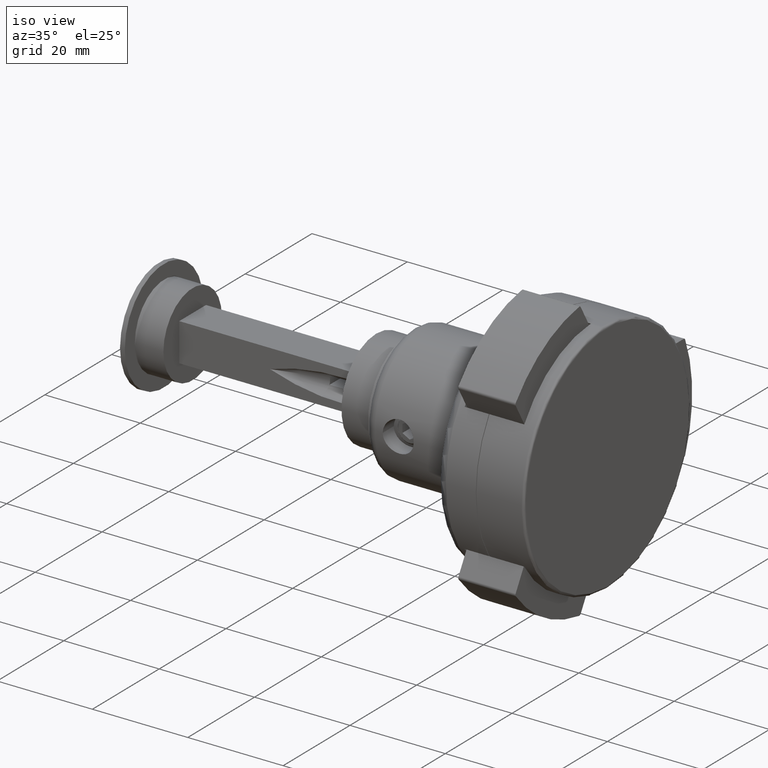
[diagram: clean part render]
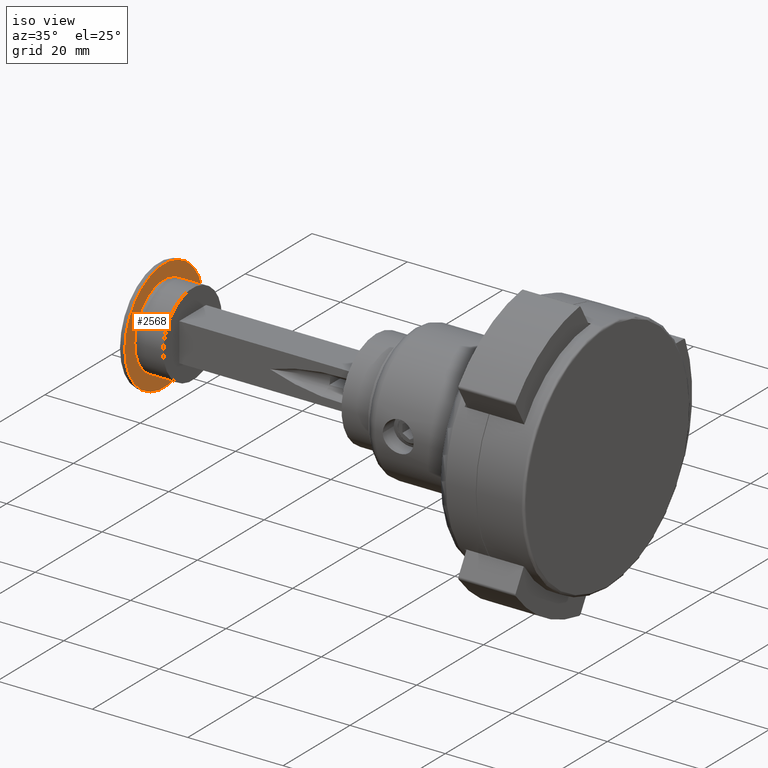
[diagram: same view with one face highlighted and labeled with its STEP entity id]
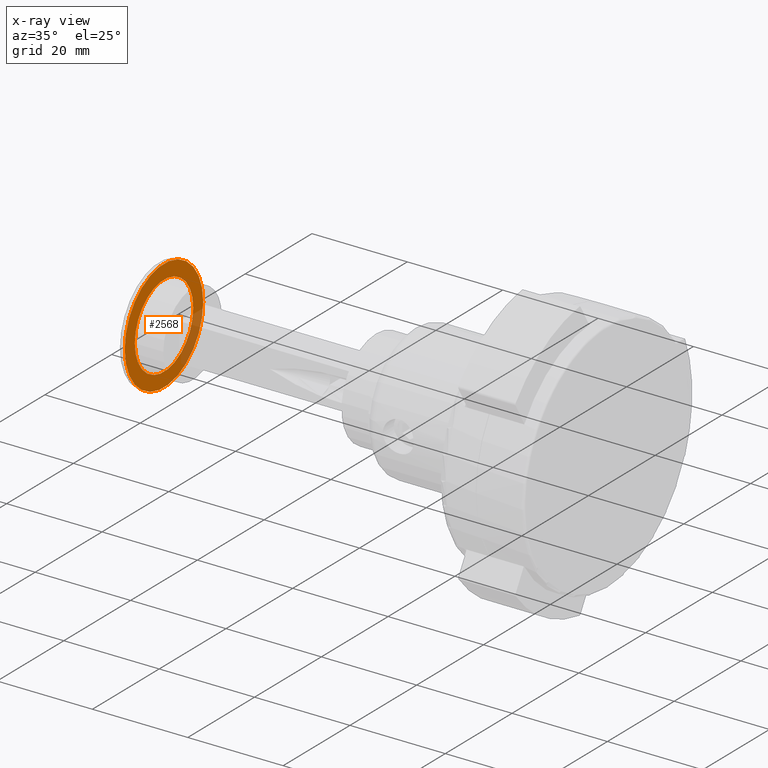
[diagram: x-ray of the same camera — body ghosted, the highlighted face saturated]
A machine part, iso view. The second image highlights one B-rep face of the part: STEP entity #2568.
The next image is the same camera in x-ray: the body ghosted, the highlighted face saturated — about 14% of this face is hidden behind the body in this view.
In plain terms, the highlighted planar face has unit normal (1, -0, 0).
Its self-contained STEP definition (entity closure, byte-faithful):
#1129 = CIRCLE ( 'NONE', #13626, 8.750000000000001776 ) ;
#2568 = ADVANCED_FACE ( 'NONE', ( #12199, #9325 ), #13025, .T. ) ;
#2703 = DIRECTION ( 'NONE',  ( 1.184491695909112875E-16, 1.000000000000000000, 0.000000000000000000 ) ) ;
#3037 = DIRECTION ( 'NONE',  ( 1.000000000000000000, -1.184491695909112875E-16, -0.000000000000000000 ) ) ;
#3596 = ORIENTED_EDGE ( 'NONE', *, *, #5822, .T. ) ;
#4146 = EDGE_LOOP ( 'NONE', ( #10726 ) ) ;
#5179 = EDGE_LOOP ( 'NONE', ( #3596 ) ) ;
#5822 = EDGE_CURVE ( 'NONE', #12882, #12882, #7350, .T. ) ;
#6449 = DIRECTION ( 'NONE',  ( 0.000000000000000000, 1.000000000000000000, 0.000000000000000000 ) ) ;
#7320 = CARTESIAN_POINT ( 'NONE',  ( -20.99999999999999645, 8.750000000000001776, 0.000000000000000000 ) ) ;
#7350 = CIRCLE ( 'NONE', #13496, 11.74999999999999822 ) ;
#7640 = DIRECTION ( 'NONE',  ( 1.000000000000000000, -1.184491695909112875E-16, -0.000000000000000000 ) ) ;
#8318 = DIRECTION ( 'NONE',  ( 1.000000000000000000, -1.184491695909112875E-16, -0.000000000000000000 ) ) ;
#8987 = CARTESIAN_POINT ( 'NONE',  ( -20.99999999999999645, 7.106950175454677744E-16, 0.000000000000000000 ) ) ;
#9325 = FACE_BOUND ( 'NONE', #4146, .T. ) ;
#9959 = CARTESIAN_POINT ( 'NONE',  ( -20.99999999999999645, 11.74999999999999822, 0.000000000000000000 ) ) ;
#10726 = ORIENTED_EDGE ( 'NONE', *, *, #13584, .F. ) ;
#10945 = CARTESIAN_POINT ( 'NONE',  ( -20.99999999999999645, 7.106950175454676758E-16, 0.000000000000000000 ) ) ;
#11015 = VERTEX_POINT ( 'NONE', #12440 ) ;
#11630 = AXIS2_PLACEMENT_3D ( 'NONE', #7320, #8318, #2703 ) ;
#12199 = FACE_OUTER_BOUND ( 'NONE', #5179, .T. ) ;
#12440 = CARTESIAN_POINT ( 'NONE',  ( -20.99999999999999645, 8.750000000000001776, 0.000000000000000000 ) ) ;
#12882 = VERTEX_POINT ( 'NONE', #9959 ) ;
#13025 = PLANE ( 'NONE',  #11630 ) ;
#13493 = DIRECTION ( 'NONE',  ( 0.000000000000000000, 1.000000000000000000, 0.000000000000000000 ) ) ;
#13496 = AXIS2_PLACEMENT_3D ( 'NONE', #8987, #7640, #13493 ) ;
#13584 = EDGE_CURVE ( 'NONE', #11015, #11015, #1129, .T. ) ;
#13626 = AXIS2_PLACEMENT_3D ( 'NONE', #10945, #3037, #6449 ) ;